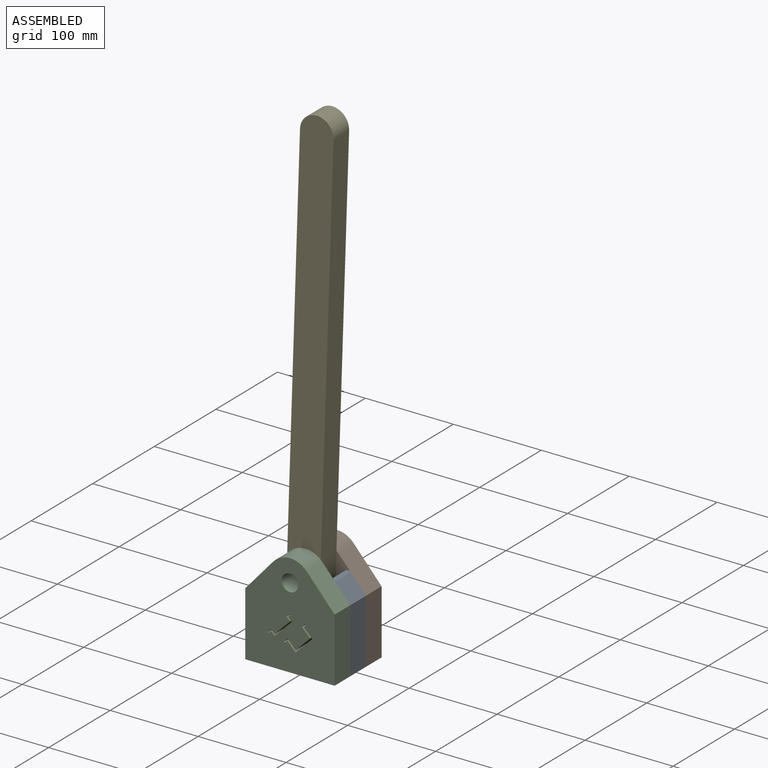
[diagram: assembled view]
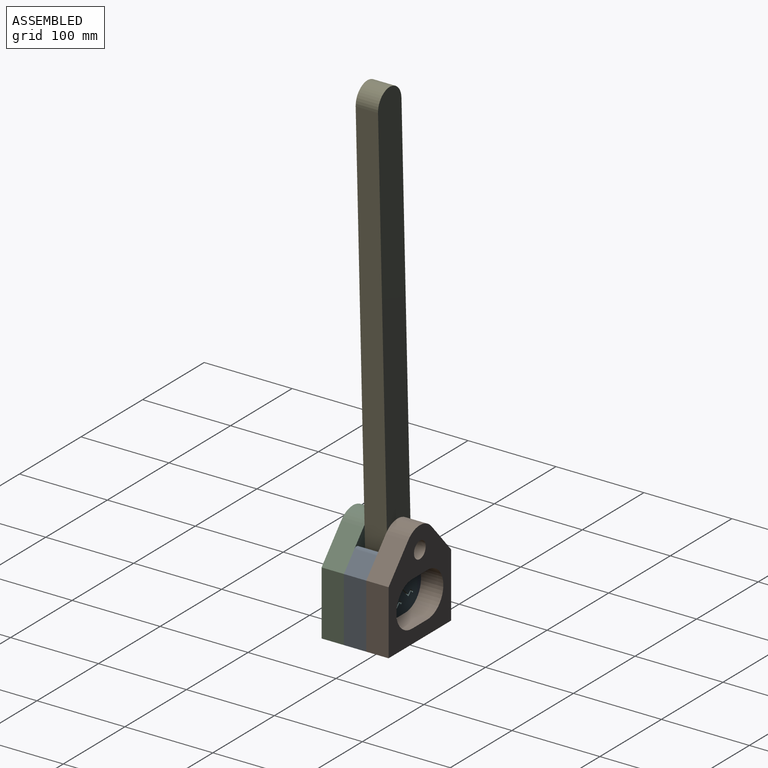
[diagram: assembled view, second angle]
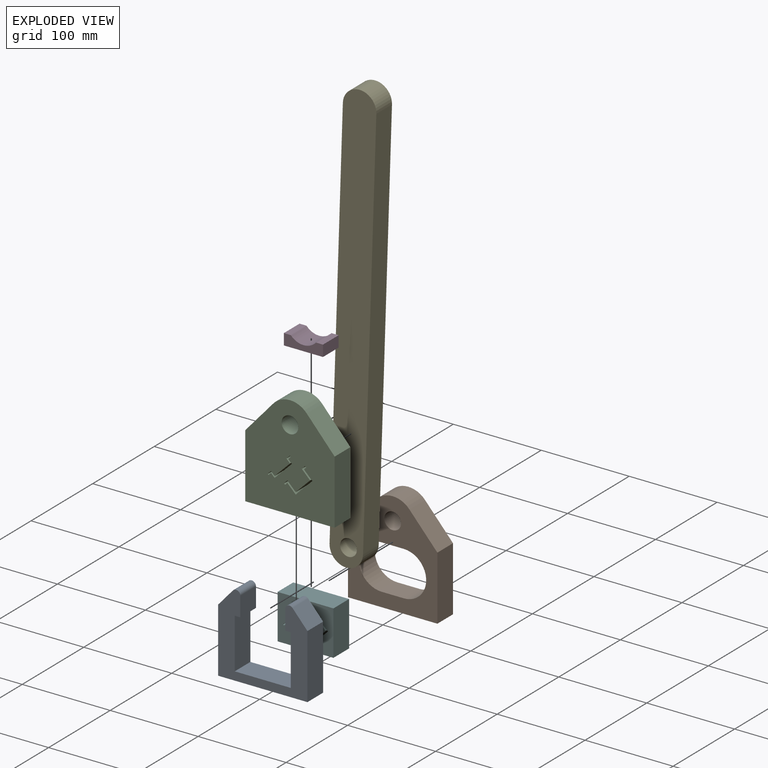
[diagram: exploded view]
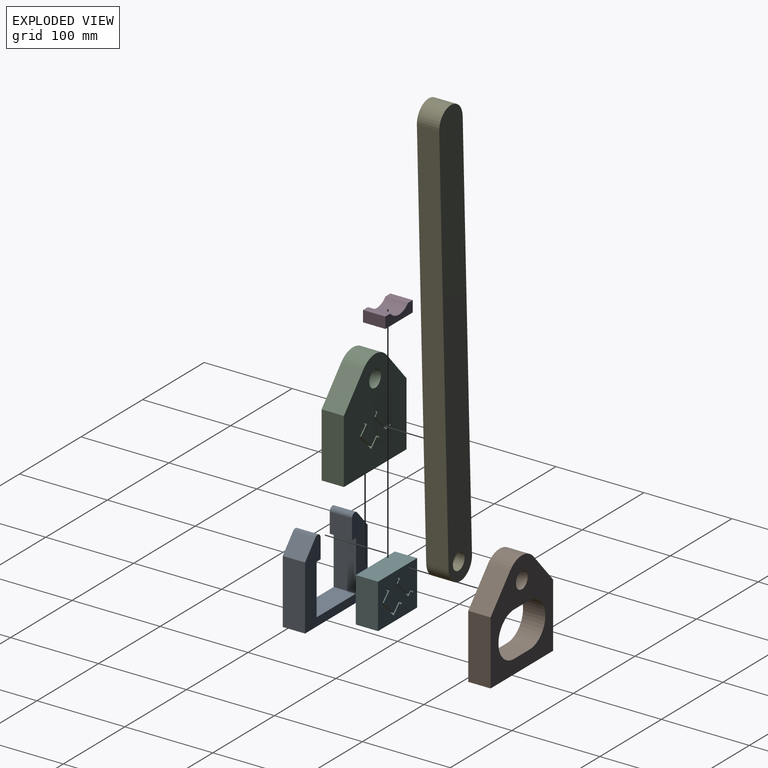
[diagram: exploded view, second angle]
ASSEMBLY  parts=6 mates=6
PART A: 16 faces, bbox 101.6x25.4x93.8 mm
  f0: plane 63.75x25.4mm, normal (0,0,1), area 1619.4mm2, adj f1,f9,f10,f11
  f1: plane 57.15x25.4mm, normal (1,0,0), area 1451.6mm2, adj f0,f2,f10,f11
  f2: plane 25.4x6.35mm, normal (0,0,-1), area 161.3mm2, adj f1,f3,f10,f11
  f3: plane 25.4x22.33mm, normal (1,0,0), area 567.1mm2, adj f2,f10,f11,f14
  f4: plane 73.03x25.4mm, normal (-1,0,0), area 1854.8mm2, adj f5,f10,f11,f15
  f5: plane 101.6x25.4mm, normal (0,0,-1), area 2580.6mm2, adj f4,f6,f10,f11
  f6: plane 73.03x25.4mm, normal (1,0,0), area 1854.8mm2, adj f5,f10,f11,f12
  f7: plane 25.4x22.33mm, normal (-1,0,0), area 567.1mm2, adj f8,f10,f11,f13
  f8: plane 25.4x6.35mm, normal (0,0,-1), area 161.3mm2, adj f7,f9,f10,f11
  f9: plane 57.15x25.4mm, normal (-1,0,0), area 1451.6mm2, adj f0,f8,f10,f11
  f10: plane 101.6x93.76mm, normal (0,-1,0), area 4108mm2, adj f0,f1,f2,f3,f4,f5,f6,f7
  f11: plane 101.6x93.76mm, normal (0,1,0), area 4108mm2, adj f0,f1,f2,f3,f4,f5,f6,f7
  f12: plane 25.4x19.13mm, normal (0.75,0,0.66), area 649.2mm2, adj f6,f10,f11,f13
  f13: cylinder r=4.76mm len=25.4mm, axis (0,1,0), area 292.4mm2, adj f7,f10,f11,f12
  f14: cylinder r=4.76mm len=25.4mm, axis (0,1,0), area 292.4mm2, adj f3,f10,f11,f15
  f15: plane 25.4x19.13mm, normal (-0.75,0,0.66), area 649.2mm2, adj f4,f10,f11,f14
PART B: 13 faces, bbox 101.6x25.4x117.5 mm
  f0: plane 73.03x25.4mm, normal (1,0,0), area 1854.8mm2, adj f1,f5,f7,f8
  f1: plane 35.89x31.79mm, normal (0.75,0,0.66), area 1217.7mm2, adj f0,f2,f7,f8
  f2: cylinder r=25.4mm len=38.03mm, axis (0,-1,0), area 1091.6mm2, adj f1,f3,f7,f8
  f3: plane 35.89x31.79mm, normal (-0.75,0,0.66), area 1217.7mm2, adj f2,f4,f7,f8
  f4: plane 73.03x25.4mm, normal (-1,0,0), area 1854.8mm2, adj f3,f5,f7,f8
  f5: plane 101.6x25.4mm, normal (0,0,-1), area 2580.6mm2, adj f0,f4,f7,f8
  f6: cylinder r=9.53mm len=25.4mm, axis (0,-1,0), area 1520.1mm2, adj f7,f8
  f7: plane 117.48x101.6mm, normal (0,1,0), area 6548.4mm2, adj f0,f1,f2,f3,f4,f5,f6,f9
  f8: plane 117.48x101.6mm, normal (0,-1,0), area 6548.4mm2, adj f0,f1,f2,f3,f4,f5,f6,f9
  f9: plane 25.4x25.4mm, normal (0,0,-1), area 645.2mm2, adj f7,f8,f10,f12
  f10: cylinder r=25.4mm len=50.8mm, axis (0,1,0), area 2026.8mm2, adj f7,f8,f9,f11
  f11: plane 25.4x25.4mm, normal (0,0,1), area 645.2mm2, adj f7,f8,f10,f12
  f12: cylinder r=25.4mm len=50.8mm, axis (0,1,0), area 2026.8mm2, adj f7,f8,f9,f11
PART C: 41 faces, bbox 101.6x25.4x117.5 mm
  f0: plane 117.48x101.6mm, normal (0,-1,0), area 9692mm2, adj f2,f3,f4,f5,f6,f7,f8,f9
  f1: plane 117.48x101.6mm, normal (0,1,0), area 9692mm2, adj f2,f3,f4,f5,f6,f7,f8,f9
  f2: plane 73.03x25.4mm, normal (1,0,0), area 1854.8mm2, adj f0,f1,f3,f7
  f3: plane 35.89x31.79mm, normal (0.75,0,0.66), area 1217.7mm2, adj f0,f1,f2,f4
  f4: cylinder r=25.4mm len=38.03mm, axis (0,1,0), area 1091.6mm2, adj f0,f1,f3,f5
  f5: plane 35.89x31.79mm, normal (-0.75,0,0.66), area 1217.7mm2, adj f0,f1,f4,f6
  f6: plane 73.03x25.4mm, normal (-1,0,0), area 1854.8mm2, adj f0,f1,f5,f7
  f7: plane 101.6x25.4mm, normal (0,0,-1), area 2580.6mm2, adj f0,f1,f2,f6
  f8: cylinder r=9.53mm len=25.4mm, axis (0,1,0), area 1520.1mm2, adj f0,f1
  f9: plane 25.4x18.9mm, normal (-0.71,0,0.71), area 679mm2, adj f0,f1,f10,f20
  f10: plane 25.4x9.43mm, normal (-0.71,0,-0.71), area 338.7mm2, adj f0,f1,f9,f11
  f11: plane 25.4x2.25mm, normal (-0.71,0,0.71), area 80.6mm2, adj f0,f1,f10,f40
  f12: plane 25.4x0.54mm, normal (-0.71,0,-0.71), area 19.4mm2, adj f0,f1,f39,f40
  f13: plane 25.4x3.5mm, normal (0.71,0,-0.71), area 125.8mm2, adj f0,f1,f14,f39
  f14: plane 25.4x9.43mm, normal (0.71,0,0.71), area 338.7mm2, adj f0,f1,f13,f15
  f15: plane 25.4x16.39mm, normal (0.71,0,-0.71), area 588.7mm2, adj f0,f1,f14,f16
  f16: plane 25.4x9.43mm, normal (-0.71,0,-0.71), area 338.7mm2, adj f0,f1,f15,f17
  f17: plane 25.4x3.5mm, normal (0.71,0,-0.71), area 125.8mm2, adj f0,f1,f16,f38
  f18: plane 25.4x0.54mm, normal (0.71,0,0.71), area 19.4mm2, adj f0,f1,f37,f38
  f19: plane 25.4x2.25mm, normal (-0.71,0,0.71), area 80.6mm2, adj f0,f1,f20,f37
  f20: plane 25.4x9.43mm, normal (0.71,0,0.71), area 338.7mm2, adj f0,f1,f9,f19
  f21: plane 25.4x3.5mm, normal (0.71,0,-0.71), area 125.8mm2, adj f0,f1,f32,f33
  f22: plane 25.4x0.27mm, normal (0.71,0,0.71), area 9.7mm2, adj f0,f1,f33,f34
  f23: plane 25.4x2.51mm, normal (-0.71,0,0.71), area 90.3mm2, adj f0,f1,f24,f34
  f24: plane 25.4x4.04mm, normal (0.71,0,0.71), area 145.2mm2, adj f0,f1,f23,f25
  f25: plane 25.4x19.54mm, normal (-0.71,0,0.71), area 701.9mm2, adj f0,f1,f24,f26
  f26: plane 25.4x4.04mm, normal (-0.71,0,-0.71), area 145.2mm2, adj f0,f1,f25,f27
  f27: plane 25.4x2.51mm, normal (-0.71,0,0.71), area 90.3mm2, adj f0,f1,f26,f35
  f28: plane 25.4x0.27mm, normal (-0.71,0,-0.71), area 9.7mm2, adj f0,f1,f35,f36
  f29: plane 25.4x3.5mm, normal (0.71,0,-0.71), area 125.8mm2, adj f0,f1,f30,f36
  f30: plane 25.4x4.04mm, normal (0.71,0,0.71), area 145.2mm2, adj f0,f1,f29,f31
  f31: plane 25.4x17.57mm, normal (0.71,0,-0.71), area 631mm2, adj f0,f1,f30,f32
  f32: plane 25.4x4.04mm, normal (-0.71,0,-0.71), area 145.2mm2, adj f0,f1,f21,f31
  f33: cylinder r=0.51mm len=25.4mm, axis (0,1,0), area 20.3mm2, adj f0,f1,f21,f22
  f34: cylinder r=0.51mm len=25.4mm, axis (0,-1,0), area 20.3mm2, adj f0,f1,f22,f23
  f35: cylinder r=0.51mm len=25.4mm, axis (0,1,0), area 20.3mm2, adj f0,f1,f27,f28
  f36: cylinder r=0.51mm len=25.4mm, axis (0,-1,0), area 20.3mm2, adj f0,f1,f28,f29
  f37: cylinder r=0.51mm len=25.4mm, axis (0,-1,0), area 20.3mm2, adj f0,f1,f18,f19
  f38: cylinder r=0.51mm len=25.4mm, axis (0,1,0), area 20.3mm2, adj f0,f1,f17,f18
  f39: cylinder r=0.51mm len=25.4mm, axis (0,-1,0), area 20.3mm2, adj f0,f1,f12,f13
  f40: cylinder r=0.51mm len=25.4mm, axis (0,1,0), area 20.3mm2, adj f0,f1,f11,f12
PART D: 8 faces, bbox 44.5x25.4x12.7 mm
  f0: plane 25.4x12.7mm, normal (-1,0,0), area 322.6mm2, adj f1,f5,f6,f7
  f1: plane 44.45x25.4mm, normal (0,0,-1), area 1129mm2, adj f0,f2,f6,f7
  f2: plane 25.4x12.7mm, normal (1,0,0), area 322.6mm2, adj f1,f3,f6,f7
  f3: plane 25.4x7.94mm, normal (0,0,1), area 201.6mm2, adj f2,f4,f6,f7
  f4: cylinder r=19.05mm len=28.58mm, axis (0,1,0), area 820.7mm2, adj f3,f5,f6,f7
  f5: plane 25.4x7.94mm, normal (0,0,1), area 201.6mm2, adj f0,f4,f6,f7
  f6: plane 44.45x12.7mm, normal (0,-1,0), area 436.8mm2, adj f0,f1,f2,f3,f4,f5
  f7: plane 44.45x12.7mm, normal (0,1,0), area 436.8mm2, adj f0,f1,f2,f3,f4,f5
PART E: 7 faces, bbox 340.5x25.4x381 mm
  f0: plane 342.9x302.41mm, normal (-0.75,0,0.66), area 11612.9mm2, adj f1,f4,f5,f6
  f1: cylinder r=19.05mm len=33.34mm, axis (0,1,0), area 1520.1mm2, adj f0,f2,f5,f6
  f2: plane 342.9x302.41mm, normal (0.75,0,-0.66), area 11612.9mm2, adj f1,f4,f5,f6
  f3: cylinder r=9.53mm len=25.4mm, axis (0,1,0), area 1520.1mm2, adj f5,f6
  f4: cylinder r=19.05mm len=33.34mm, axis (0,1,0), area 1520.1mm2, adj f0,f2,f5,f6
  f5: plane 381x340.51mm, normal (0,-1,0), area 18274.4mm2, adj f0,f1,f2,f3,f4
  f6: plane 381x340.51mm, normal (0,1,0), area 18274.4mm2, adj f0,f1,f2,f3,f4
PART F: 30 faces, bbox 63.5x25.4x50.8 mm
  f0: plane 25.4x0.99mm, normal (0.71,0,0.71), area 35.5mm2, adj f1,f27,f28,f29
  f1: plane 25.4x3.86mm, normal (0.71,0,-0.71), area 138.7mm2, adj f0,f2,f28,f29
  f2: plane 25.4x4.04mm, normal (-0.71,0,-0.71), area 145.2mm2, adj f1,f3,f28,f29
  f3: plane 25.4x17.57mm, normal (0.71,0,-0.71), area 631mm2, adj f2,f4,f28,f29
  f4: plane 25.4x4.04mm, normal (0.71,0,0.71), area 145.2mm2, adj f3,f5,f28,f29
  f5: plane 25.4x3.86mm, normal (0.71,0,-0.71), area 138.7mm2, adj f4,f6,f28,f29
  f6: plane 25.4x0.99mm, normal (-0.71,0,-0.71), area 35.5mm2, adj f5,f7,f28,f29
  f7: plane 25.4x2.87mm, normal (-0.71,0,0.71), area 103.2mm2, adj f6,f8,f28,f29
  f8: plane 25.4x4.04mm, normal (-0.71,0,-0.71), area 145.2mm2, adj f7,f9,f28,f29
  f9: plane 25.4x19.54mm, normal (-0.71,0,0.71), area 701.9mm2, adj f8,f10,f28,f29
  f10: plane 25.4x4.04mm, normal (0.71,0,0.71), area 145.2mm2, adj f9,f27,f28,f29
  f11: plane 25.4x9.43mm, normal (-0.71,0,-0.71), area 338.7mm2, adj f12,f25,f28,f29
  f12: plane 25.4x18.9mm, normal (-0.71,0,0.71), area 679mm2, adj f11,f13,f28,f29
  f13: plane 25.4x9.43mm, normal (0.71,0,0.71), area 338.7mm2, adj f12,f14,f28,f29
  f14: plane 25.4x2.6mm, normal (-0.71,0,0.71), area 93.5mm2, adj f13,f15,f28,f29
  f15: plane 25.4x1.26mm, normal (0.71,0,0.71), area 45.2mm2, adj f14,f16,f28,f29
  f16: plane 25.4x3.86mm, normal (0.71,0,-0.71), area 138.7mm2, adj f15,f17,f28,f29
  f17: plane 25.4x9.43mm, normal (-0.71,0,-0.71), area 338.7mm2, adj f16,f18,f28,f29
  f18: plane 25.4x16.39mm, normal (0.71,0,-0.71), area 588.7mm2, adj f17,f19,f28,f29
  f19: plane 25.4x9.43mm, normal (0.71,0,0.71), area 338.7mm2, adj f18,f20,f28,f29
  f20: plane 25.4x3.86mm, normal (0.71,0,-0.71), area 138.7mm2, adj f19,f21,f28,f29
  f21: plane 25.4x1.26mm, normal (-0.71,0,-0.71), area 45.2mm2, adj f20,f25,f28,f29
  f22: plane 50.8x25.4mm, normal (1,0,0), area 1290.3mm2, adj f23,f26,f28,f29
  f23: plane 63.5x25.4mm, normal (0,0,1), area 1612.9mm2, adj f22,f24,f28,f29
  f24: plane 50.8x25.4mm, normal (-1,0,0), area 1290.3mm2, adj f23,f26,f28,f29
  f25: plane 25.4x2.6mm, normal (-0.71,0,0.71), area 93.5mm2, adj f11,f21,f28,f29
  f26: plane 63.5x25.4mm, normal (0,0,-1), area 1612.9mm2, adj f22,f24,f28,f29
  f27: plane 25.4x2.87mm, normal (-0.71,0,0.71), area 103.2mm2, adj f0,f10,f28,f29
  f28: plane 63.5x50.8mm, normal (0,-1,0), area 3051.8mm2, adj f0,f1,f2,f3,f4,f5,f6,f7
  f29: plane 63.5x50.8mm, normal (0,1,0), area 3051.8mm2, adj f0,f1,f2,f3,f4,f5,f6,f7
PLACE A at identity fixed
PLACE B at identity fixed
PLACE C at identity
PLACE D rot(axis=(-0.02,-0.98,0.2),0deg) t=(0.82,0,-2.08)mm
PLACE E rot(axis=(0,-1,0),39.5deg) t=(32.32,0,11.61)mm
PLACE F rot(axis=(0,-1,0),0deg) t=(-0.13,0,-2.08)mm
MATE planar F.f29 <-> B.f8  axis (0,1,0) through (-0.34,0,-1.95)mm
MATE revolute B.f6 <-> E.f3  axis (0,-1,0) through (0,0,50.8)mm
MATE planar F.f23 <-> D.f1  axis (0,0,1) through (-0.13,-12.7,23.32)mm
MATE fastened C.f7 <-> A.f5  axis (0,0,1) through (50.8,-25.4,-41.27)mm
MATE planar F.f24 <-> A.f1  axis (-1,0,0) through (-31.88,-12.7,-2.08)mm
MATE revolute E.f1 <-> D.f4  axis (0,-1,0) through (-2.48,-25.4,48.62)mm
